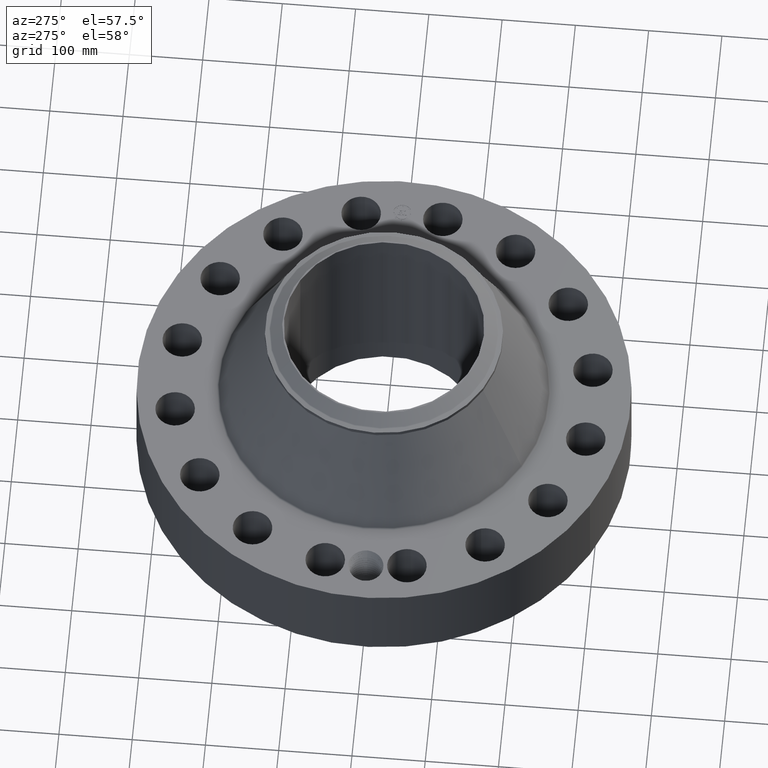
[diagram: clean part render]
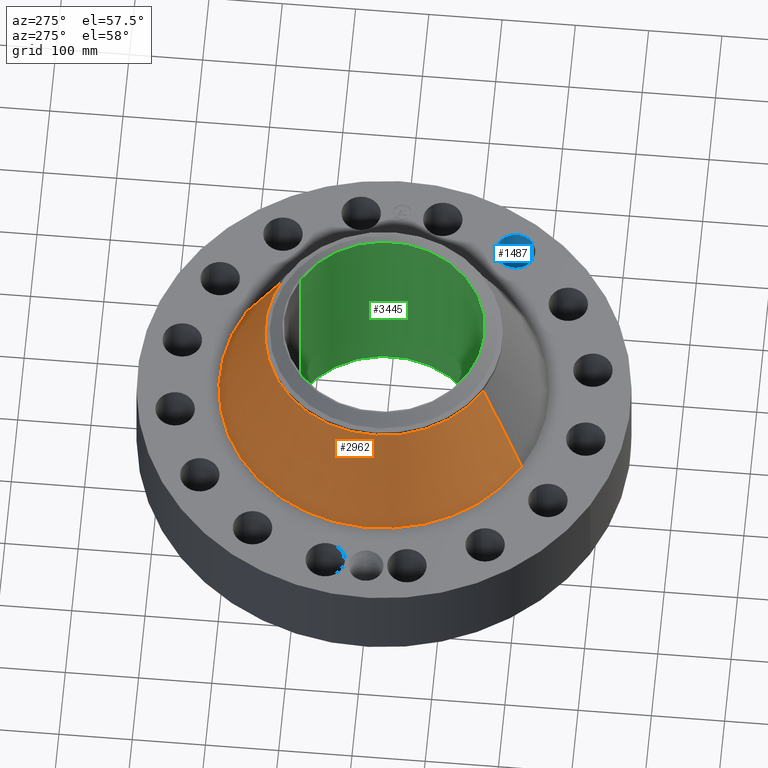
[diagram: same view with three faces highlighted in distinct colors, each labeled with its STEP entity id]
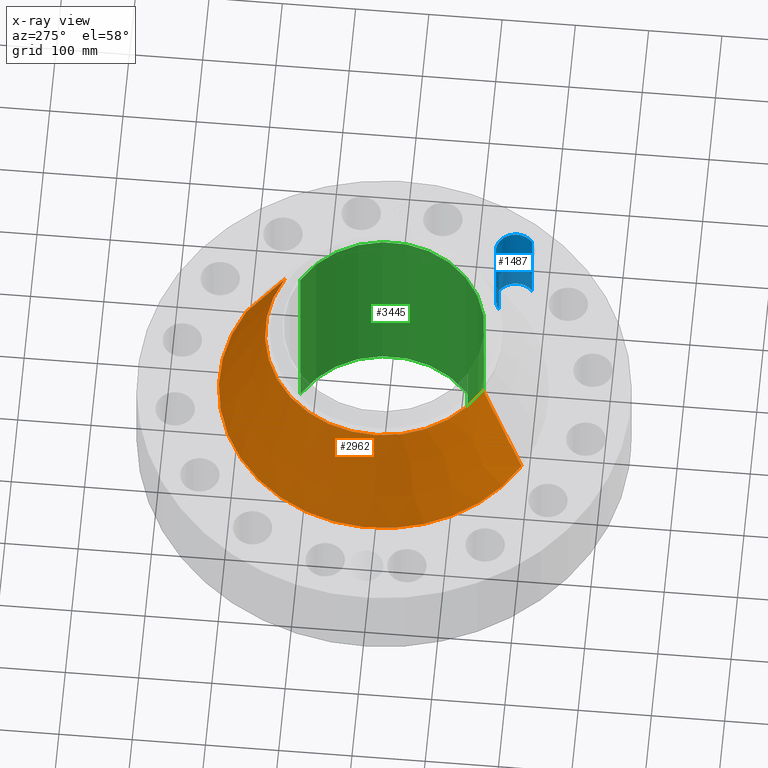
[diagram: x-ray of the same camera — body ghosted, the three highlighted faces saturated]
A machine part, auxiliary view with three faces highlighted in distinct colors.
The next image is the same camera in x-ray (body ghosted, the three faces saturated) — at least one of them is partly hidden behind the body in this view.
Their STEP definitions:

[orange] entity #2962 — the highlighted conical surface has half-angle 24.658 deg.
#2294=AXIS2_PLACEMENT_3D('Circle Axis2P3D',#2292,#2293,$) ;
#2923=AXIS2_PLACEMENT_3D('Cone Axis2P3D',#2920,#2921,#2922) ;
#2953=AXIS2_PLACEMENT_3D('Circle Axis2P3D',#2951,#2952,$) ;
#2270=CARTESIAN_POINT('Vertex',(4.23950964946,7.76037035941,5.19993499734)) ;
#2277=CARTESIAN_POINT('Vertex',(-4.23950964946,-7.76037035941,5.19993499734)) ;
#2292=CARTESIAN_POINT('Axis2P3D Location',(0.,0.,5.19993499734)) ;
#2920=CARTESIAN_POINT('Axis2P3D Location',(0.,0.,10.5757853752)) ;
#2925=CARTESIAN_POINT('Line Origine',(3.64792372904,6.67747959574,7.88786018625)) ;
#2929=CARTESIAN_POINT('Vertex',(3.05633780861,5.59458883207,10.5757853752)) ;
#2936=CARTESIAN_POINT('Vertex',(-3.05633780861,-5.59458883207,10.5757853752)) ;
#2939=CARTESIAN_POINT('Line Origine',(-3.64792372904,-6.67747959574,7.88786018625)) ;
#2951=CARTESIAN_POINT('Axis2P3D Location',(0.,0.,10.5757853752)) ;
#2293=DIRECTION('Axis2P3D Direction',(0.,0.,-0.0393700787402)) ;
#2921=DIRECTION('Axis2P3D Direction',(0.,0.,-0.0393700787402)) ;
#2922=DIRECTION('Axis2P3D XDirection',(-0.0188750212049,-0.0345504945626,0.)) ;
#2926=DIRECTION('Vector Direction',(0.00787481656096,0.0144147550256,-0.0357799553059)) ;
#2940=DIRECTION('Vector Direction',(-0.00787481656096,-0.0144147550256,-0.0357799553059)) ;
#2952=DIRECTION('Axis2P3D Direction',(0.,0.,-0.0393700787402)) ;
#2927=VECTOR('Line Direction',#2926,0.0393700787402) ;
#2941=VECTOR('Line Direction',#2940,0.0393700787402) ;
#2957=ORIENTED_EDGE('',*,*,#2296,.F.) ;
#2958=ORIENTED_EDGE('',*,*,#2943,.T.) ;
#2959=ORIENTED_EDGE('',*,*,#2955,.T.) ;
#2960=ORIENTED_EDGE('',*,*,#2931,.F.) ;
#2962=ADVANCED_FACE('PartBody',(#2961),#2924,.T.) ;
#2295=CIRCLE('generated circle',#2294,8.84289489834) ;
#2954=CIRCLE('generated circle',#2953,6.37500000003) ;
#2924=CONICAL_SURFACE('Cone',#2923,6.37500000003,0.430371391378) ;
#2296=EDGE_CURVE('',#2278,#2271,#2295,.T.) ;
#2931=EDGE_CURVE('',#2271,#2930,#2928,.F.) ;
#2943=EDGE_CURVE('',#2278,#2937,#2942,.F.) ;
#2955=EDGE_CURVE('',#2937,#2930,#2954,.T.) ;
#2956=EDGE_LOOP('',(#2957,#2958,#2959,#2960)) ;
#2961=FACE_OUTER_BOUND('',#2956,.T.) ;
#2928=LINE('Line',#2925,#2927) ;
#2942=LINE('Line',#2939,#2941) ;
#2271=VERTEX_POINT('',#2270) ;
#2278=VERTEX_POINT('',#2277) ;
#2930=VERTEX_POINT('',#2929) ;
#2937=VERTEX_POINT('',#2936) ;

[blue] entity #1487 — the highlighted cylindrical surface (edge-blend (fillet) strip) has radius 26.924 mm, axis along (0, -0, -1).
#280=AXIS2_PLACEMENT_3D('Circle Axis2P3D',#278,#279,$) ;
#762=AXIS2_PLACEMENT_3D('Circle Axis2P3D',#760,#761,$) ;
#1469=AXIS2_PLACEMENT_3D('Cylinder Axis2P3D',#1466,#1467,#1468) ;
#278=CARTESIAN_POINT('Axis2P3D Location',(9.35403313844,-6.2501651215,0.250000000001)) ;
#282=CARTESIAN_POINT('Vertex',(8.68908204072,-5.42467130708,0.250000000001)) ;
#284=CARTESIAN_POINT('Vertex',(10.0189842362,-7.07565893591,0.250000000001)) ;
#755=CARTESIAN_POINT('Vertex',(10.0189842362,-7.07565893591,5.13000000002)) ;
#757=CARTESIAN_POINT('Vertex',(8.68908204072,-5.42467130708,5.13000000002)) ;
#760=CARTESIAN_POINT('Axis2P3D Location',(9.35403313844,-6.2501651215,5.13000000002)) ;
#1466=CARTESIAN_POINT('Axis2P3D Location',(9.35403313844,-6.2501651215,5.12606299215)) ;
#1471=CARTESIAN_POINT('Line Origine',(8.68908204072,-5.42467130708,2.69000000001)) ;
#1476=CARTESIAN_POINT('Line Origine',(10.0189842362,-7.07565893591,2.69000000001)) ;
#279=DIRECTION('Axis2P3D Direction',(0.,0.,-0.0393700787402)) ;
#761=DIRECTION('Axis2P3D Direction',(0.,0.,-0.0393700787402)) ;
#1467=DIRECTION('Axis2P3D Direction',(0.,-0.,-0.0393700787402)) ;
#1468=DIRECTION('Axis2P3D XDirection',(0.0246973368639,-0.030660147616,0.)) ;
#1472=DIRECTION('Vector Direction',(0.,0.,-0.0393700787402)) ;
#1477=DIRECTION('Vector Direction',(0.,0.,-0.0393700787402)) ;
#1473=VECTOR('Line Direction',#1472,0.0393700787402) ;
#1478=VECTOR('Line Direction',#1477,0.0393700787402) ;
#1482=ORIENTED_EDGE('',*,*,#1475,.F.) ;
#1483=ORIENTED_EDGE('',*,*,#286,.T.) ;
#1484=ORIENTED_EDGE('',*,*,#1480,.T.) ;
#1485=ORIENTED_EDGE('',*,*,#764,.F.) ;
#1487=ADVANCED_FACE('PartBody',(#1486),#1470,.F.) ;
#281=CIRCLE('generated circle',#280,1.06) ;
#763=CIRCLE('generated circle',#762,1.06) ;
#1470=CYLINDRICAL_SURFACE('generated cylinder',#1469,1.06) ;
#286=EDGE_CURVE('',#283,#285,#281,.T.) ;
#764=EDGE_CURVE('',#758,#756,#763,.T.) ;
#1475=EDGE_CURVE('',#283,#758,#1474,.F.) ;
#1480=EDGE_CURVE('',#285,#756,#1479,.F.) ;
#1481=EDGE_LOOP('',(#1482,#1483,#1484,#1485)) ;
#1486=FACE_OUTER_BOUND('',#1481,.T.) ;
#1474=LINE('Line',#1471,#1473) ;
#1479=LINE('Line',#1476,#1478) ;
#283=VERTEX_POINT('',#282) ;
#285=VERTEX_POINT('',#284) ;
#756=VERTEX_POINT('',#755) ;
#758=VERTEX_POINT('',#757) ;

[green] entity #3445 — the highlighted cylindrical surface (partial cylindrical patch) has radius 136.525 mm, axis along (0, 0, -1).
#2621=AXIS2_PLACEMENT_3D('Circle Axis2P3D',#2619,#2620,$) ;
#3376=AXIS2_PLACEMENT_3D('Cylinder Axis2P3D',#3373,#3374,#3375) ;
#3380=AXIS2_PLACEMENT_3D('Circle Axis2P3D',#3378,#3379,$) ;
#2619=CARTESIAN_POINT('Axis2P3D Location',(0.,0.,0.)) ;
#2623=CARTESIAN_POINT('Vertex',(2.57691227001,4.71700627018,-2.90930883933E-014)) ;
#2625=CARTESIAN_POINT('Vertex',(-2.57691227001,-4.71700627018,-2.90930883933E-014)) ;
#3373=CARTESIAN_POINT('Axis2P3D Location',(0.,0.,5.68500000002)) ;
#3378=CARTESIAN_POINT('Axis2P3D Location',(0.,0.,11.37)) ;
#3382=CARTESIAN_POINT('Vertex',(2.57691227001,4.71700627018,11.37)) ;
#3384=CARTESIAN_POINT('Vertex',(-2.57691227001,-4.71700627018,11.37)) ;
#3387=CARTESIAN_POINT('Line Origine',(2.57691227001,4.71700627018,5.68500000002)) ;
#3392=CARTESIAN_POINT('Line Origine',(-2.57691227001,-4.71700627018,5.68500000002)) ;
#3404=CARTESIAN_POINT('Control Point',(0.219395640473,-5.37052051045,0.820143615352)) ;
#3405=CARTESIAN_POINT('Control Point',(0.206921684844,-5.37103009448,0.797310192731)) ;
#3406=CARTESIAN_POINT('Control Point',(0.191478074454,-5.3716247178,0.776101019242)) ;
#3407=CARTESIAN_POINT('Control Point',(0.173344736968,-5.37225844319,0.75702922116)) ;
#3408=CARTESIAN_POINT('Control Point',(0.112133458408,-5.3740914513,0.707548714257)) ;
#3409=CARTESIAN_POINT('Control Point',(0.0349764936146,-5.37528235123,0.684025192492)) ;
#3410=CARTESIAN_POINT('Control Point',(-0.0195660182611,-5.37537126655,0.68238771756)) ;
#3411=CARTESIAN_POINT('Control Point',(-0.12415307424,-5.37406025242,0.707532995551)) ;
#3412=CARTESIAN_POINT('Control Point',(-0.203198974501,-5.37134695756,0.780451069486)) ;
#3413=CARTESIAN_POINT('Control Point',(-0.232174051143,-5.37001129445,0.826669782653)) ;
#3414=CARTESIAN_POINT('Control Point',(-0.25583444528,-5.36891195524,0.904824490894)) ;
#3415=CARTESIAN_POINT('Control Point',(-0.248293521102,-5.3692620356,0.98420913129)) ;
#3416=CARTESIAN_POINT('Control Point',(-0.242059489196,-5.36955569445,1.01078883035)) ;
#3417=CARTESIAN_POINT('Control Point',(-0.232322077143,-5.36999244174,1.03619470105)) ;
#3418=CARTESIAN_POINT('Control Point',(-0.219395640473,-5.37052051045,1.05985638466)) ;
#3419=CARTESIAN_POINT('Vertex',(0.219395640473,-5.37052051045,0.820143615352)) ;
#3421=CARTESIAN_POINT('Vertex',(-0.219395640473,-5.37052051045,1.05985638466)) ;
#3425=CARTESIAN_POINT('Control Point',(-0.219395640473,-5.37052051045,1.05985638466)) ;
#3426=CARTESIAN_POINT('Control Point',(-0.206921684838,-5.37103009448,1.08268980729)) ;
#3427=CARTESIAN_POINT('Control Point',(-0.191478074439,-5.3716247178,1.10389898079)) ;
#3428=CARTESIAN_POINT('Control Point',(-0.173344736991,-5.37225844318,1.12297077883)) ;
#3429=CARTESIAN_POINT('Control Point',(-0.112133458415,-5.3740914513,1.17245128575)) ;
#3430=CARTESIAN_POINT('Control Point',(-0.0349764935965,-5.37528235123,1.19597480752)) ;
#3431=CARTESIAN_POINT('Control Point',(0.0195660182331,-5.37537126655,1.19761228245)) ;
#3432=CARTESIAN_POINT('Control Point',(0.124153074261,-5.37406025242,1.17246700446)) ;
#3433=CARTESIAN_POINT('Control Point',(0.20319897455,-5.37134695756,1.09954893048)) ;
#3434=CARTESIAN_POINT('Control Point',(0.23217405112,-5.37001129445,1.05333021743)) ;
#3435=CARTESIAN_POINT('Control Point',(0.255834445269,-5.36891195524,0.975175509198)) ;
#3436=CARTESIAN_POINT('Control Point',(0.248293521111,-5.3692620356,0.895790868815)) ;
#3437=CARTESIAN_POINT('Control Point',(0.242059489163,-5.36955569445,0.869211169566)) ;
#3438=CARTESIAN_POINT('Control Point',(0.232322077121,-5.36999244174,0.843805298921)) ;
#3439=CARTESIAN_POINT('Control Point',(0.219395640473,-5.37052051045,0.820143615352)) ;
#2620=DIRECTION('Axis2P3D Direction',(0.,0.,-0.0393700787402)) ;
#3374=DIRECTION('Axis2P3D Direction',(0.,0.,-0.0393700787402)) ;
#3375=DIRECTION('Axis2P3D XDirection',(-0.0188750212049,-0.0345504945626,0.)) ;
#3379=DIRECTION('Axis2P3D Direction',(0.,0.,-0.0393700787402)) ;
#3388=DIRECTION('Vector Direction',(0.,0.,-0.0393700787402)) ;
#3393=DIRECTION('Vector Direction',(0.,0.,-0.0393700787402)) ;
#3389=VECTOR('Line Direction',#3388,0.0393700787402) ;
#3394=VECTOR('Line Direction',#3393,0.0393700787402) ;
#3398=ORIENTED_EDGE('',*,*,#3386,.F.) ;
#3399=ORIENTED_EDGE('',*,*,#3391,.T.) ;
#3400=ORIENTED_EDGE('',*,*,#2627,.T.) ;
#3401=ORIENTED_EDGE('',*,*,#3396,.F.) ;
#3442=ORIENTED_EDGE('',*,*,#3423,.F.) ;
#3443=ORIENTED_EDGE('',*,*,#3440,.F.) ;
#3444=FACE_BOUND('',#3441,.T.) ;
#3445=ADVANCED_FACE('PartBody',(#3402,#3444),#3377,.F.) ;
#3403=B_SPLINE_CURVE_WITH_KNOTS('',5,(#3404,#3405,#3406,#3407,#3408,#3409,#3410,#3411,#3412,#3413,#3414,#3415,#3416,#3417,#3418),.UNSPECIFIED.,.F.,.U.,(6,3,3,3,6),(0.,4.67396039535,14.0222463984,23.3722421757,28.2157461003),.UNSPECIFIED.) ;
#3424=B_SPLINE_CURVE_WITH_KNOTS('',5,(#3425,#3426,#3427,#3428,#3429,#3430,#3431,#3432,#3433,#3434,#3435,#3436,#3437,#3438,#3439),.UNSPECIFIED.,.F.,.U.,(6,3,3,3,6),(0.,4.67396039758,14.0222464027,23.3722421862,28.2157461025),.UNSPECIFIED.) ;
#2622=CIRCLE('generated circle',#2621,5.37500000002) ;
#3381=CIRCLE('generated circle',#3380,5.37500000002) ;
#3377=CYLINDRICAL_SURFACE('generated cylinder',#3376,5.37500000002) ;
#2627=EDGE_CURVE('',#2624,#2626,#2622,.T.) ;
#3386=EDGE_CURVE('',#3383,#3385,#3381,.T.) ;
#3391=EDGE_CURVE('',#3383,#2624,#3390,.T.) ;
#3396=EDGE_CURVE('',#3385,#2626,#3395,.T.) ;
#3423=EDGE_CURVE('',#3420,#3422,#3403,.T.) ;
#3440=EDGE_CURVE('',#3422,#3420,#3424,.T.) ;
#3397=EDGE_LOOP('',(#3398,#3399,#3400,#3401)) ;
#3441=EDGE_LOOP('',(#3442,#3443)) ;
#3402=FACE_OUTER_BOUND('',#3397,.T.) ;
#3390=LINE('Line',#3387,#3389) ;
#3395=LINE('Line',#3392,#3394) ;
#2624=VERTEX_POINT('',#2623) ;
#2626=VERTEX_POINT('',#2625) ;
#3383=VERTEX_POINT('',#3382) ;
#3385=VERTEX_POINT('',#3384) ;
#3420=VERTEX_POINT('',#3419) ;
#3422=VERTEX_POINT('',#3421) ;